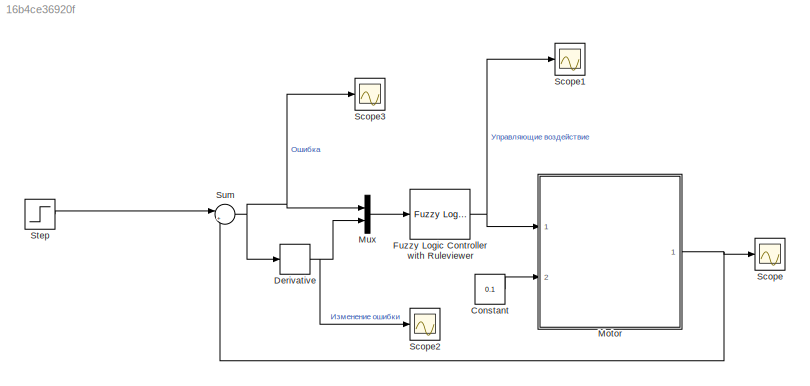
MODEL slx_16b4ce36920f
KIND model
CONFIG AbsTol = auto
CONFIG EnableMultiTasking = off
CONFIG FixedStep = auto
CONFIG MaxStep = auto
CONFIG MinStep = auto
CONFIG RelTol = 1e-6
CONFIG SampleTimeConstraint = Unconstrained
CONFIG SolverName = ode23
CONFIG StartTime = 0.0
CONFIG StopTime = 0.2
BLOCK [Constant] Constant
  Value = 0.1
BLOCK [Derivative] Derivative
BLOCK [Reference] Fuzzy Logic Controller with Ruleviewer  REF=fuzblock/Fuzzy Logic   (lib defined in mdl_858b3b3e7478)
Controller 
with Ruleviewer
  Ports = [1, 1]
  SourceBlock = fuzblock/Fuzzy Logic \nController \nwith Ruleviewer
  SourceProductBaseCode = FL
  SourceType = Fuzzy Inference System
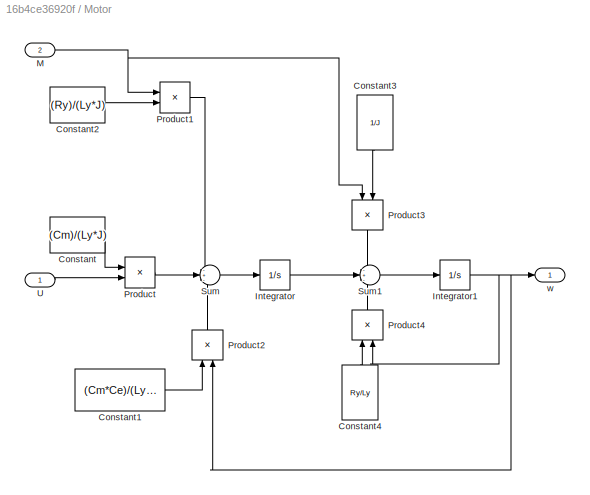
BLOCK [SubSystem] Motor
  Ports = [2, 1]
  RequestExecContextInheritance = off
BLOCK [Constant] Motor/Constant
  Value = (Cm)/(Ly*J)
BLOCK [Constant] Motor/Constant1
  Value = (Cm*Ce)/(Ly*J)
BLOCK [Constant] Motor/Constant2
  Value = (Ry)/(Ly*J)
BLOCK [Constant] Motor/Constant3
  NameLocation = left
  Value = 1/J
BLOCK [Constant] Motor/Constant4
  NameLocation = right
  Value = Ry/Ly
BLOCK [Integrator] Motor/Integrator
  Ports = [1, 1]
BLOCK [Integrator] Motor/Integrator1
  Ports = [1, 1]
BLOCK [Inport] Motor/M
  Port = 2
BLOCK [Product] Motor/Product
  Ports = [2, 1]
BLOCK [Product] Motor/Product1
  Ports = [2, 1]
BLOCK [Product] Motor/Product2
  NameLocation = right
  Ports = [2, 1]
BLOCK [Product] Motor/Product3
  NameLocation = left
  Ports = [2, 1]
BLOCK [Product] Motor/Product4
  NameLocation = right
  Ports = [2, 1]
BLOCK [Sum] Motor/Sum
  Inputs = -+-
  Ports = [3, 1]
BLOCK [Sum] Motor/Sum1
  Inputs = -+-
  Ports = [3, 1]
BLOCK [Inport] Motor/U
BLOCK [Outport] Motor/w
BLOCK [Mux] Mux
  DisplayOption = bar
  Inputs = 2
  Ports = [2, 1]
BLOCK [Scope] Scope
  Floating = off
  NumInputPorts = 1
  Ports = [1]
  ScopeSpecificationString = Simulink.scopes.TimeScopeBlockCfg('CurrentConfiguration', extmgr.ConfigurationSet(extmgr.Configuration('Core','General UI',true,'FigureColor',[1 1 1]),extmgr.Configuration('Core','Source UI',true),extmgr.Configuration('Sources','WiredSimulink',true),extmgr.Configuration('Visuals','Time Domain',true,'SerializedDisplays',{struct('MinYLimReal','-0.22613','MaxYLimReal','1.12935','YLabelReal','','MinYL...<+1478ch>
BLOCK [Scope] Scope1
  Floating = off
  NumInputPorts = 1
  Ports = [1]
  ScopeSpecificationString = Simulink.scopes.TimeScopeBlockCfg('CurrentConfiguration', extmgr.ConfigurationSet(extmgr.Configuration('Core','General UI',true,'FigureColor',[1 1 1]),extmgr.Configuration('Core','Source UI',true),extmgr.Configuration('Sources','WiredSimulink',true,'DataLoggingVariableName','ScopeData1'),extmgr.Configuration('Visuals','Time Domain',true,'SerializedDisplays',{struct('MinYLimReal','0.31118','MaxYLim...<+1503ch>
BLOCK [Scope] Scope2
  Floating = off
  NumInputPorts = 1
  Ports = [1]
  ScopeSpecificationString = Simulink.scopes.TimeScopeBlockCfg('CurrentConfiguration', extmgr.ConfigurationSet(extmgr.Configuration('Core','General UI',true,'FigureColor',[1 1 1]),extmgr.Configuration('Core','Source UI',true),extmgr.Configuration('Sources','WiredSimulink',true,'DataLoggingVariableName','ScopeData2'),extmgr.Configuration('Visuals','Time Domain',true,'SerializedDisplays',{struct('MinYLimReal','-646.51354','MaxY...<+1512ch>
BLOCK [Scope] Scope3
  Floating = off
  NumInputPorts = 1
  Ports = [1]
  ScopeSpecificationString = Simulink.scopes.TimeScopeBlockCfg('CurrentConfiguration', extmgr.ConfigurationSet(extmgr.Configuration('Core','General UI',true,'FigureColor',[1 1 1]),extmgr.Configuration('Core','Source UI',true),extmgr.Configuration('Sources','WiredSimulink',true,'DataLoggingVariableName','ScopeData3'),extmgr.Configuration('Visuals','Time Domain',true,'SerializedDisplays',{struct('MinYLimReal','-0.12935','MaxYLi...<+1488ch>
BLOCK [Step] Step
  SampleTime = 0
  Time = 0
BLOCK [Sum] Sum
  Inputs = |+-
  Ports = [2, 1]
LINE Constant:1 -> Motor:2
NET Derivative:1 -> Mux:2, Scope2:1
NET Fuzzy Logic Controller with Ruleviewer:1 -> Motor:1, Scope1:1
LINE Motor/Constant1:1 -> Motor/Product2:1
LINE Motor/Constant2:1 -> Motor/Product1:2
LINE Motor/Constant3:1 -> Motor/Product3:2
LINE Motor/Constant4:1 -> Motor/Product4:1
LINE Motor/Constant:1 -> Motor/Product:1
NET Motor/Integrator1:1 -> Motor/Product2:2, Motor/Product4:2, Motor/w:1
LINE Motor/Integrator:1 -> Motor/Sum1:2
NET Motor/M:1 -> Motor/Product1:1, Motor/Product3:1
LINE Motor/Product1:1 -> Motor/Sum:1
LINE Motor/Product2:1 -> Motor/Sum:3
LINE Motor/Product3:1 -> Motor/Sum1:1
LINE Motor/Product4:1 -> Motor/Sum1:3
LINE Motor/Product:1 -> Motor/Sum:2
LINE Motor/Sum1:1 -> Motor/Integrator1:1
LINE Motor/Sum:1 -> Motor/Integrator:1
LINE Motor/U:1 -> Motor/Product:2
NET Motor:1 -> Scope:1, Sum:2
LINE Mux:1 -> Fuzzy Logic Controller with Ruleviewer:1
LINE Step:1 -> Sum:1
NET Sum:1 -> Derivative:1, Mux:1, Scope3:1
note: NET lines group one-source signal fan-out (src -> all destinations, sorted); 1:1 wires keep LINE
